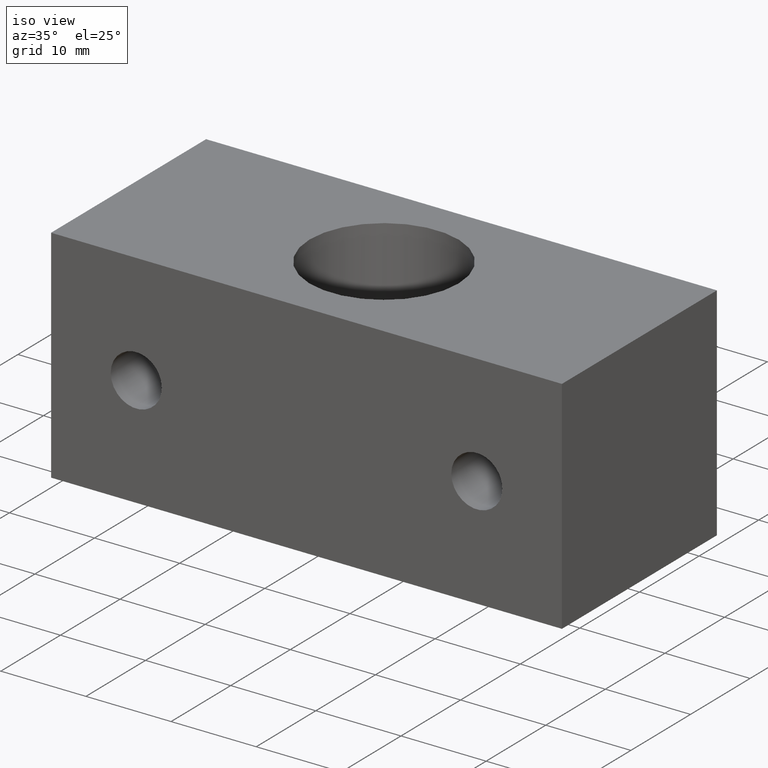
[diagram: clean part render]
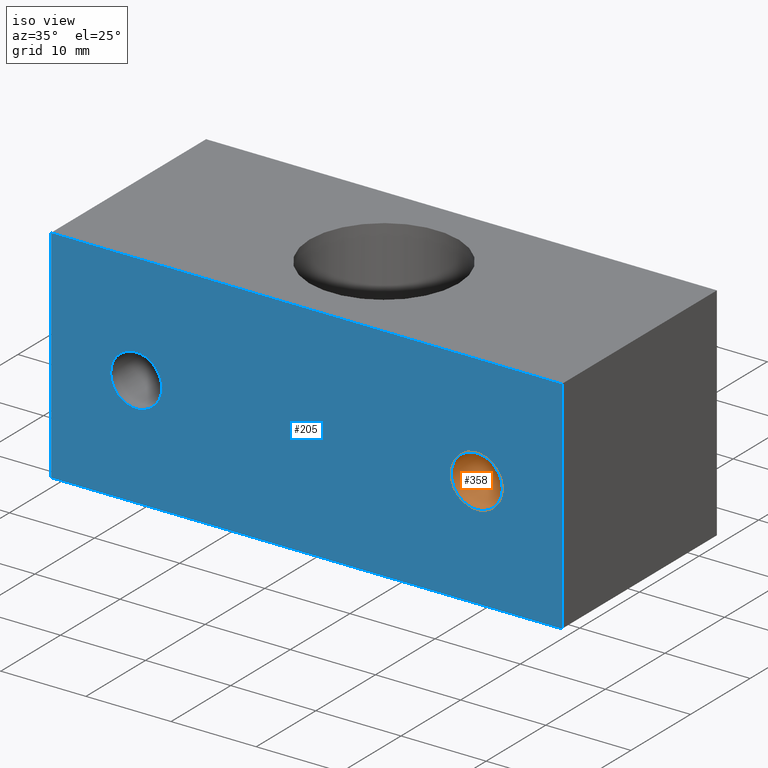
[diagram: same view with the hole feature highlighted: cylindrical wall and planar end face, labeled with their STEP entity ids]
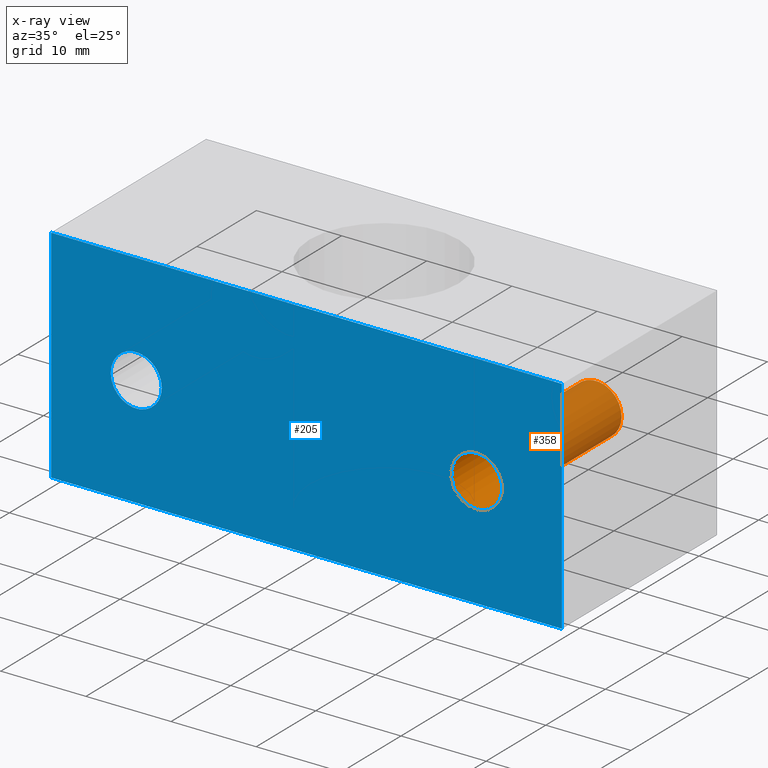
[diagram: x-ray of the same camera — body ghosted, the hole faces saturated]
A machine part, iso view. The highlighted faces form one hole feature of diameter 6 mm: the cylindrical wall (entity #358, orange) and its adjacent planar end face (entity #205, blue) — they share a circular edge in the B-rep.
The next image is the same camera in x-ray (body ghosted, the hole faces saturated) — the bore reads through the body.
Wall:
#185=CARTESIAN_POINT('',(23.0,-13.0,0.0));
#186=VERTEX_POINT('',#185);
#187=CARTESIAN_POINT('',(17.000000000000011,-13.0,0.0));
#188=VERTEX_POINT('',#187);
#189=CARTESIAN_POINT('',(20.0,-13.0,0.0));
#190=DIRECTION('',(0.0,1.0,6.123234E-017));
#191=DIRECTION('',(1.0,0.0,0.0));
#192=AXIS2_PLACEMENT_3D('',#189,#190,#191);
#193=CIRCLE('',#192,2.999999999999988);
#194=EDGE_CURVE('',#186,#188,#193,.T.);
#196=CARTESIAN_POINT('',(20.0,-13.0,0.0));
#197=DIRECTION('',(0.0,1.0,6.123234E-017));
#198=DIRECTION('',(1.0,0.0,0.0));
#199=AXIS2_PLACEMENT_3D('',#196,#197,#198);
#200=CIRCLE('',#199,2.999999999999988);
#201=EDGE_CURVE('',#188,#186,#200,.T.);
#324=CARTESIAN_POINT('',(20.0,13.0,0.0));
#325=DIRECTION('',(0.0,1.0,6.123234E-017));
#326=DIRECTION('',(1.0,0.0,0.0));
#327=AXIS2_PLACEMENT_3D('',#324,#325,#326);
#328=CYLINDRICAL_SURFACE('',#327,2.999999999999988);
#329=ORIENTED_EDGE('',*,*,#201,.F.);
#330=ORIENTED_EDGE('',*,*,#194,.F.);
#331=CARTESIAN_POINT('',(23.0,7.000004422703000,0.0));
#332=VERTEX_POINT('',#331);
#333=CARTESIAN_POINT('',(23.0,7.000004422702999,0.0));
#334=DIRECTION('',(0.0,-1.0,0.0));
#335=VECTOR('',#334,20.000004422703004);
#336=LINE('',#333,#335);
#337=EDGE_CURVE('',#332,#186,#336,.T.);
#338=ORIENTED_EDGE('',*,*,#337,.F.);
#339=CARTESIAN_POINT('',(17.000000000000011,7.000004422703000,0.0));
#340=VERTEX_POINT('',#339);
#341=CARTESIAN_POINT('',(20.0,7.000004422703000,0.0));
#342=DIRECTION('',(0.0,1.0,6.123234E-017));
#343=DIRECTION('',(1.0,0.0,0.0));
#344=AXIS2_PLACEMENT_3D('',#341,#342,#343);
#345=CIRCLE('',#344,2.999999999999988);
#346=EDGE_CURVE('',#332,#340,#345,.T.);
#347=ORIENTED_EDGE('',*,*,#346,.T.);
#348=CARTESIAN_POINT('',(20.0,7.000004422703000,0.0));
#349=DIRECTION('',(0.0,1.0,6.123234E-017));
#350=DIRECTION('',(1.0,0.0,0.0));
#351=AXIS2_PLACEMENT_3D('',#348,#349,#350);
#352=CIRCLE('',#351,2.999999999999988);
#353=EDGE_CURVE('',#340,#332,#352,.T.);
#354=ORIENTED_EDGE('',*,*,#353,.T.);
#355=ORIENTED_EDGE('',*,*,#337,.T.);
#356=EDGE_LOOP('',(#329,#330,#338,#347,#354,#355));
#357=FACE_OUTER_BOUND('',#356,.T.);
#358=ADVANCED_FACE('',(#357),#328,.F.);
End face:
#7=CARTESIAN_POINT('',(30.000000000000114,-13.0,-13.0));
#8=VERTEX_POINT('',#7);
#25=CARTESIAN_POINT('',(30.000000000000114,-13.0,13.0));
#26=VERTEX_POINT('',#25);
#33=CARTESIAN_POINT('',(30.000000000000114,-13.0,-13.0));
#34=DIRECTION('',(0.0,0.0,1.0));
#35=VECTOR('',#34,26.0);
#36=LINE('',#33,#35);
#37=EDGE_CURVE('',#8,#26,#36,.T.);
#118=CARTESIAN_POINT('',(-30.0,-13.0,-13.0));
#119=VERTEX_POINT('',#118);
#126=CARTESIAN_POINT('',(-30.0,-13.0,13.0));
#127=VERTEX_POINT('',#126);
#128=CARTESIAN_POINT('',(-30.0,-13.0,-13.0));
#129=DIRECTION('',(0.0,0.0,1.0));
#130=VECTOR('',#129,26.0);
#131=LINE('',#128,#130);
#132=EDGE_CURVE('',#119,#127,#131,.T.);
#144=CARTESIAN_POINT('',(-30.0,-13.0,-13.0));
#145=DIRECTION('',(0.0,-1.0,0.0));
#146=DIRECTION('',(1.0,0.0,0.0));
#147=AXIS2_PLACEMENT_3D('',#144,#145,#146);
#148=PLANE('',#147);
#149=ORIENTED_EDGE('',*,*,#37,.T.);
#150=CARTESIAN_POINT('',(-30.0,-13.0,13.0));
#151=DIRECTION('',(1.0,0.0,0.0));
#152=VECTOR('',#151,60.000000000000114);
#153=LINE('',#150,#152);
#154=EDGE_CURVE('',#127,#26,#153,.T.);
#155=ORIENTED_EDGE('',*,*,#154,.F.);
#156=ORIENTED_EDGE('',*,*,#132,.F.);
#157=CARTESIAN_POINT('',(-30.0,-13.0,-13.0));
#158=DIRECTION('',(1.0,0.0,0.0));
#159=VECTOR('',#158,60.000000000000114);
#160=LINE('',#157,#159);
#161=EDGE_CURVE('',#119,#8,#160,.T.);
#162=ORIENTED_EDGE('',*,*,#161,.T.);
#163=EDGE_LOOP('',(#149,#155,#156,#162));
#164=FACE_OUTER_BOUND('',#163,.T.);
#165=CARTESIAN_POINT('',(-16.999999999999886,-13.0,0.0));
#166=VERTEX_POINT('',#165);
#167=CARTESIAN_POINT('',(-22.999999999999876,-13.0,0.0));
#168=VERTEX_POINT('',#167);
#169=CARTESIAN_POINT('',(-19.999999999999886,-13.0,0.0));
#170=DIRECTION('',(0.0,1.0,6.123234E-017));
#171=DIRECTION('',(1.0,0.0,0.0));
#172=AXIS2_PLACEMENT_3D('',#169,#170,#171);
#173=CIRCLE('',#172,2.999999999999988);
#174=EDGE_CURVE('',#166,#168,#173,.T.);
#175=ORIENTED_EDGE('',*,*,#174,.T.);
#176=CARTESIAN_POINT('',(-19.999999999999886,-13.0,0.0));
#177=DIRECTION('',(0.0,1.0,6.123234E-017));
#178=DIRECTION('',(1.0,0.0,0.0));
#179=AXIS2_PLACEMENT_3D('',#176,#177,#178);
#180=CIRCLE('',#179,2.999999999999988);
#181=EDGE_CURVE('',#168,#166,#180,.T.);
#182=ORIENTED_EDGE('',*,*,#181,.T.);
#183=EDGE_LOOP('',(#175,#182));
#184=FACE_BOUND('',#183,.T.);
#185=CARTESIAN_POINT('',(23.0,-13.0,0.0));
#186=VERTEX_POINT('',#185);
#187=CARTESIAN_POINT('',(17.000000000000011,-13.0,0.0));
#188=VERTEX_POINT('',#187);
#189=CARTESIAN_POINT('',(20.0,-13.0,0.0));
#190=DIRECTION('',(0.0,1.0,6.123234E-017));
#191=DIRECTION('',(1.0,0.0,0.0));
#192=AXIS2_PLACEMENT_3D('',#189,#190,#191);
#193=CIRCLE('',#192,2.999999999999988);
#194=EDGE_CURVE('',#186,#188,#193,.T.);
#195=ORIENTED_EDGE('',*,*,#194,.T.);
#196=CARTESIAN_POINT('',(20.0,-13.0,0.0));
#197=DIRECTION('',(0.0,1.0,6.123234E-017));
#198=DIRECTION('',(1.0,0.0,0.0));
#199=AXIS2_PLACEMENT_3D('',#196,#197,#198);
#200=CIRCLE('',#199,2.999999999999988);
#201=EDGE_CURVE('',#188,#186,#200,.T.);
#202=ORIENTED_EDGE('',*,*,#201,.T.);
#203=EDGE_LOOP('',(#195,#202));
#204=FACE_BOUND('',#203,.T.);
#205=ADVANCED_FACE('',(#164,#184,#204),#148,.T.);